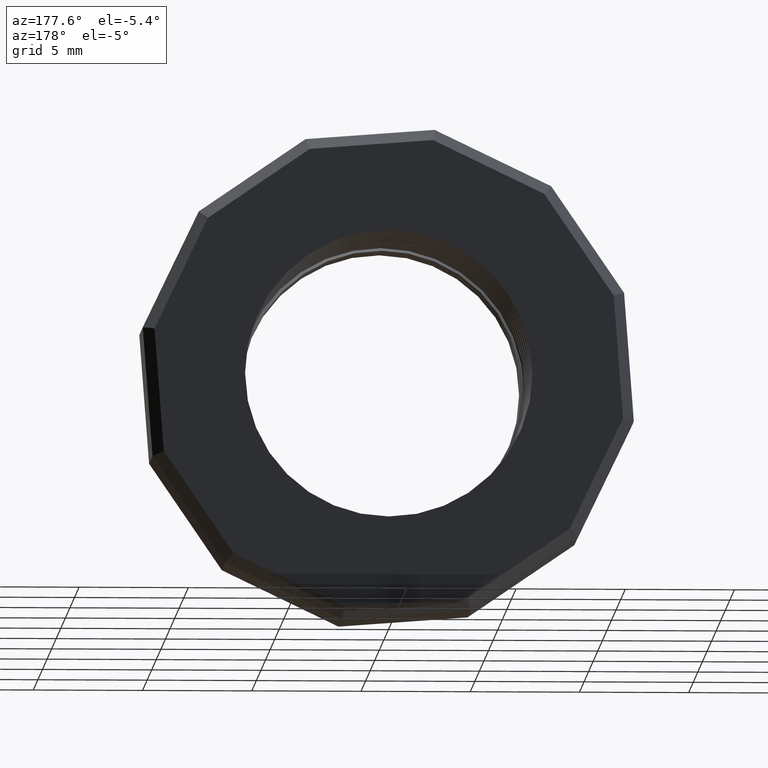
[diagram: clean part render]
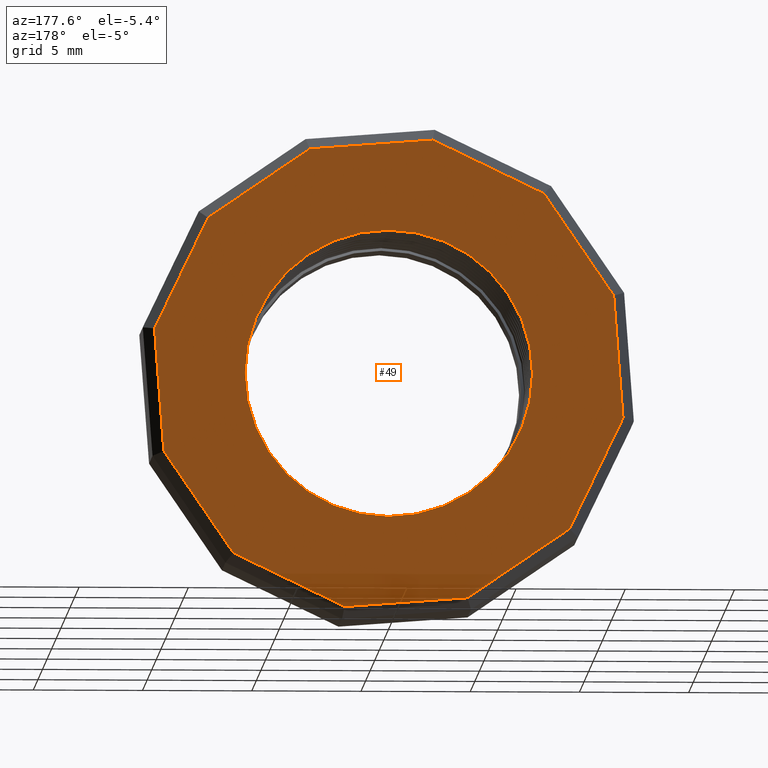
[diagram: same view with one face highlighted and labeled with its STEP entity id]
A machine part, auxiliary view. The second image highlights one B-rep face of the part: STEP entity #49.
In plain terms, the highlighted planar face has unit normal (0, 1, 0).
Its self-contained STEP definition (entity closure, byte-faithful):
#17 = EDGE_LOOP ( 'NONE', ( #48, #44, #81, #82, #70, #66, #65, #94, #95, #83, #79, #87 ) ) ;
#42 = VERTEX_POINT ( 'NONE', #941 ) ;
#44 = ORIENTED_EDGE ( 'NONE', *, *, #89, .T. ) ;
#45 = VERTEX_POINT ( 'NONE', #936 ) ;
#47 = EDGE_CURVE ( 'NONE', #45, #42, #935, .T. ) ;
#48 = ORIENTED_EDGE ( 'NONE', *, *, #47, .T. ) ;
#49 = ADVANCED_FACE ( 'NONE', ( #931, #930 ), #929, .T. ) ;
#65 = ORIENTED_EDGE ( 'NONE', *, *, #92, .T. ) ;
#66 = ORIENTED_EDGE ( 'NONE', *, *, #75, .T. ) ;
#67 = VERTEX_POINT ( 'NONE', #965 ) ;
#68 = EDGE_LOOP ( 'NONE', ( #105, #99 ) ) ;
#70 = ORIENTED_EDGE ( 'NONE', *, *, #74, .T. ) ;
#71 = VERTEX_POINT ( 'NONE', #960 ) ;
#73 = VERTEX_POINT ( 'NONE', #959 ) ;
#74 = EDGE_CURVE ( 'NONE', #67, #73, #958, .T. ) ;
#75 = EDGE_CURVE ( 'NONE', #73, #71, #954, .T. ) ;
#76 = EDGE_CURVE ( 'NONE', #80, #67, #950, .T. ) ;
#77 = EDGE_CURVE ( 'NONE', #86, #85, #946, .T. ) ;
#78 = VERTEX_POINT ( 'NONE', #1005 ) ;
#79 = ORIENTED_EDGE ( 'NONE', *, *, #77, .T. ) ;
#80 = VERTEX_POINT ( 'NONE', #1004 ) ;
#81 = ORIENTED_EDGE ( 'NONE', *, *, #84, .T. ) ;
#82 = ORIENTED_EDGE ( 'NONE', *, *, #76, .T. ) ;
#83 = ORIENTED_EDGE ( 'NONE', *, *, #90, .T. ) ;
#84 = EDGE_CURVE ( 'NONE', #88, #80, #1003, .T. ) ;
#85 = VERTEX_POINT ( 'NONE', #999 ) ;
#86 = VERTEX_POINT ( 'NONE', #998 ) ;
#87 = ORIENTED_EDGE ( 'NONE', *, *, #109, .T. ) ;
#88 = VERTEX_POINT ( 'NONE', #997 ) ;
#89 = EDGE_CURVE ( 'NONE', #42, #88, #996, .T. ) ;
#90 = EDGE_CURVE ( 'NONE', #78, #86, #992, .T. ) ;
#91 = VERTEX_POINT ( 'NONE', #988 ) ;
#92 = EDGE_CURVE ( 'NONE', #71, #93, #987, .T. ) ;
#93 = VERTEX_POINT ( 'NONE', #983 ) ;
#94 = ORIENTED_EDGE ( 'NONE', *, *, #96, .T. ) ;
#95 = ORIENTED_EDGE ( 'NONE', *, *, #97, .T. ) ;
#96 = EDGE_CURVE ( 'NONE', #93, #91, #982, .T. ) ;
#97 = EDGE_CURVE ( 'NONE', #91, #78, #978, .T. ) ;
#99 = ORIENTED_EDGE ( 'NONE', *, *, #604, .T. ) ;
#105 = ORIENTED_EDGE ( 'NONE', *, *, #323, .T. ) ;
#109 = EDGE_CURVE ( 'NONE', #85, #45, #1024, .T. ) ;
#323 = EDGE_CURVE ( 'NONE', #417, #418, #1392, .T. ) ;
#417 = VERTEX_POINT ( 'NONE', #1588 ) ;
#418 = VERTEX_POINT ( 'NONE', #1587 ) ;
#604 = EDGE_CURVE ( 'NONE', #418, #417, #1928, .T. ) ;
#925 = DIRECTION ( 'NONE',  ( 0.0000000000000000000, -0.0000000000000000000, 1.000000000000000000 ) ) ;
#926 = DIRECTION ( 'NONE',  ( 0.0000000000000000000, 1.000000000000000000, 0.0000000000000000000 ) ) ;
#927 = AXIS2_PLACEMENT_3D ( 'NONE', #928, #926, #925 ) ;
#928 = CARTESIAN_POINT ( 'NONE',  ( 0.4502999999999999800, 0.4075548905829479200, 0.0000000000000000000 ) ) ;
#929 = PLANE ( 'NONE',  #927 ) ;
#930 = FACE_BOUND ( 'NONE', #68, .T. ) ;
#931 = FACE_OUTER_BOUND ( 'NONE', #17, .T. ) ;
#932 = DIRECTION ( 'NONE',  ( 0.8258262676036761700, 0.0000000000000000000, -0.5639246188417217400 ) ) ;
#933 = VECTOR ( 'NONE', #932, 39.37007874015748900 ) ;
#934 = CARTESIAN_POINT ( 'NONE',  ( 0.5411037870941162200, 0.4075548905829479200, 0.1329754901182280400 ) ) ;
#935 = LINE ( 'NONE', #934, #933 ) ;
#936 = CARTESIAN_POINT ( 'NONE',  ( 0.1421827925272013400, 0.4075548905829479200, 0.4053831121982145500 ) ) ;
#941 = CARTESIAN_POINT ( 'NONE',  ( 0.3258254664086758200, 0.4075548905829479200, 0.2799806771652506000 ) ) ;
#945 = CARTESIAN_POINT ( 'NONE',  ( 0.1860170833978083100, 0.4075548905829479200, 0.5498181556680230600 ) ) ;
#946 = LINE ( 'NONE', #945, #1007 ) ;
#947 = DIRECTION ( 'NONE',  ( -0.5639246188417219600, 0.0000000000000000000, -0.8258262676036761700 ) ) ;
#948 = VECTOR ( 'NONE', #947, 39.37007874015748100 ) ;
#949 = CARTESIAN_POINT ( 'NONE',  ( 0.4858822370555548300, 0.4075548905829479200, -0.02429772490443393400 ) ) ;
#950 = LINE ( 'NONE', #949, #948 ) ;
#951 = DIRECTION ( 'NONE',  ( -0.9971488362781305600, 0.0000000000000000000, 0.07545991193454966400 ) ) ;
#952 = VECTOR ( 'NONE', #951, 39.37007874015748100 ) ;
#953 = CARTESIAN_POINT ( 'NONE',  ( 0.4164233291325494800, 0.4075548905829479200, -0.4476560078913784400 ) ) ;
#954 = LINE ( 'NONE', #953, #952 ) ;
#955 = DIRECTION ( 'NONE',  ( -0.9012861795382257600, 0.0000000000000000000, -0.4332242174364087700 ) ) ;
#956 = VECTOR ( 'NONE', #955, 39.37007874015748900 ) ;
#957 = CARTESIAN_POINT ( 'NONE',  ( 0.5455554063525976900, 0.4075548905829479200, -0.1981707804331044000 ) ) ;
#958 = LINE ( 'NONE', #957, #956 ) ;
#959 = CARTESIAN_POINT ( 'NONE',  ( 0.07955764578953877800, 0.4075548905829479200, -0.4221634696924518300 ) ) ;
#960 = CARTESIAN_POINT ( 'NONE',  ( -0.1421827925272011200, 0.4075548905829479200, -0.4053831121982146000 ) ) ;
#965 = CARTESIAN_POINT ( 'NONE',  ( 0.2799806771652504400, 0.4075548905829479200, -0.3258254664086758200 ) ) ;
#975 = DIRECTION ( 'NONE',  ( 0.07545991193454960900, 0.0000000000000000000, 0.9971488362781305600 ) ) ;
#976 = VECTOR ( 'NONE', #975, 39.37007874015748100 ) ;
#977 = CARTESIAN_POINT ( 'NONE',  ( -0.4112091934467139200, 0.4075548905829479200, 0.06519529031487640600 ) ) ;
#978 = LINE ( 'NONE', #977, #976 ) ;
#979 = DIRECTION ( 'NONE',  ( -0.4332242174364086500, 0.0000000000000000000, 0.9012861795382259800 ) ) ;
#980 = VECTOR ( 'NONE', #979, 39.37007874015748100 ) ;
#981 = CARTESIAN_POINT ( 'NONE',  ( -0.2894807129257671000, 0.4075548905829479200, -0.3555928490948541100 ) ) ;
#982 = LINE ( 'NONE', #981, #980 ) ;
#983 = CARTESIAN_POINT ( 'NONE',  ( -0.3258254664086761600, 0.4075548905829479200, -0.2799806771652503200 ) ) ;
#984 = DIRECTION ( 'NONE',  ( -0.8258262676036763900, 0.0000000000000000000, 0.5639246188417215100 ) ) ;
#985 = VECTOR ( 'NONE', #984, 39.37007874015748900 ) ;
#986 = CARTESIAN_POINT ( 'NONE',  ( 0.07309552815823941500, 0.4075548905829479200, -0.5523882992452371400 ) ) ;
#987 = LINE ( 'NONE', #986, #985 ) ;
#988 = CARTESIAN_POINT ( 'NONE',  ( -0.4221634696924517800, 0.4075548905829479200, -0.07955764578953931900 ) ) ;
#989 = DIRECTION ( 'NONE',  ( 0.5639246188417215100, 0.0000000000000000000, 0.8258262676036763900 ) ) ;
#990 = VECTOR ( 'NONE', #989, 39.37007874015748900 ) ;
#991 = CARTESIAN_POINT ( 'NONE',  ( -0.1994815523079104000, 0.4075548905829479200, 0.4437105340314429500 ) ) ;
#992 = LINE ( 'NONE', #991, #990 ) ;
#993 = DIRECTION ( 'NONE',  ( 0.4332242174364086500, 0.0000000000000000000, -0.9012861795382259800 ) ) ;
#994 = VECTOR ( 'NONE', #993, 39.37007874015748100 ) ;
#995 = CARTESIAN_POINT ( 'NONE',  ( 0.4585082231753607700, 0.4075548905829479200, 0.003945473859935344000 ) ) ;
#996 = LINE ( 'NONE', #995, #994 ) ;
#997 = CARTESIAN_POINT ( 'NONE',  ( 0.4221634696924517800, 0.4075548905829479200, 0.07955764578953890300 ) ) ;
#998 = CARTESIAN_POINT ( 'NONE',  ( -0.2799806771652506000, 0.4075548905829479200, 0.3258254664086756600 ) ) ;
#999 = CARTESIAN_POINT ( 'NONE',  ( -0.07955764578953873600, 0.4075548905829479200, 0.4221634696924517800 ) ) ;
#1000 = DIRECTION ( 'NONE',  ( -0.07545991193454922000, 0.0000000000000000000, -0.9971488362781305600 ) ) ;
#1001 = VECTOR ( 'NONE', #1000, 39.37007874015748100 ) ;
#1002 = CARTESIAN_POINT ( 'NONE',  ( 0.4163373884439523500, 0.4075548905829479200, 0.002570143577214002700 ) ) ;
#1003 = LINE ( 'NONE', #1002, #1001 ) ;
#1004 = CARTESIAN_POINT ( 'NONE',  ( 0.4053831121982146000, 0.4075548905829479200, -0.1421827925272010900 ) ) ;
#1005 = CARTESIAN_POINT ( 'NONE',  ( -0.4053831121982145500, 0.4075548905829479200, 0.1421827925272011500 ) ) ;
#1006 = DIRECTION ( 'NONE',  ( 0.9012861795382259800, 0.0000000000000000000, 0.4332242174364087700 ) ) ;
#1007 = VECTOR ( 'NONE', #1006, 39.37007874015748100 ) ;
#1021 = DIRECTION ( 'NONE',  ( 0.9971488362781305600, 0.0000000000000000000, -0.07545991193454953900 ) ) ;
#1022 = VECTOR ( 'NONE', #1021, 39.37007874015748100 ) ;
#1023 = CARTESIAN_POINT ( 'NONE',  ( 0.4790484758702118800, 0.4075548905829479200, 0.3798905739992878800 ) ) ;
#1024 = LINE ( 'NONE', #1023, #1022 ) ;
#1388 = DIRECTION ( 'NONE',  ( 0.0000000000000000000, 0.0000000000000000000, -1.000000000000000000 ) ) ;
#1389 = DIRECTION ( 'NONE',  ( -0.0000000000000000000, -1.000000000000000000, -0.0000000000000000000 ) ) ;
#1390 = CARTESIAN_POINT ( 'NONE',  ( 0.0000000000000000000, 0.4075548905829479200, 0.0000000000000000000 ) ) ;
#1391 = AXIS2_PLACEMENT_3D ( 'NONE', #1390, #1389, #1388 ) ;
#1392 = CIRCLE ( 'NONE', #1391, 0.2589880461203001900 ) ;
#1587 = CARTESIAN_POINT ( 'NONE',  ( 3.171688816986526800E-017, 0.4075548905829479200, 0.2589880461203001900 ) ) ;
#1588 = CARTESIAN_POINT ( 'NONE',  ( 0.0000000000000000000, 0.4075548905829479200, -0.2589880461203001900 ) ) ;
#1924 = DIRECTION ( 'NONE',  ( 0.0000000000000000000, 0.0000000000000000000, -1.000000000000000000 ) ) ;
#1925 = DIRECTION ( 'NONE',  ( -0.0000000000000000000, -1.000000000000000000, -0.0000000000000000000 ) ) ;
#1926 = CARTESIAN_POINT ( 'NONE',  ( 0.0000000000000000000, 0.4075548905829479200, 0.0000000000000000000 ) ) ;
#1927 = AXIS2_PLACEMENT_3D ( 'NONE', #1926, #1925, #1924 ) ;
#1928 = CIRCLE ( 'NONE', #1927, 0.2589880461203001900 ) ;